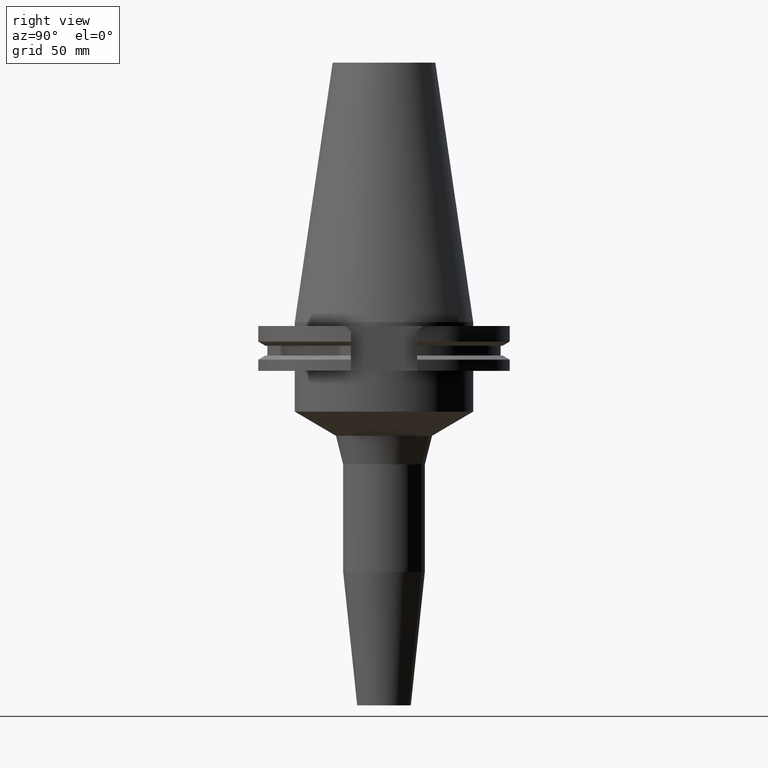
[diagram: clean part render]
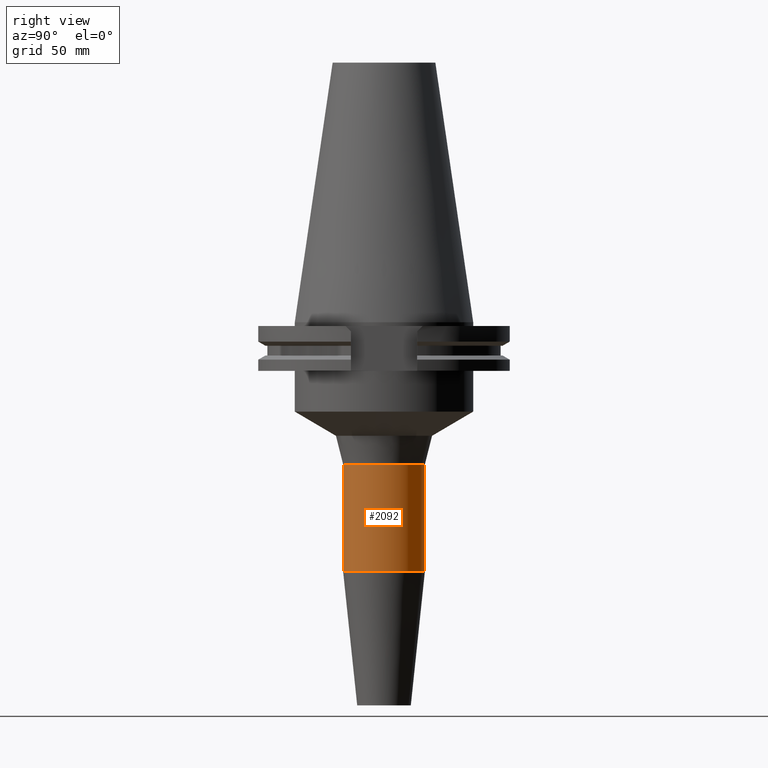
[diagram: same view with one face highlighted and labeled with its STEP entity id]
A machine part, right view. The second image highlights one B-rep face of the part: STEP entity #2092.
In plain terms, the highlighted cylindrical surface (partial cylindrical patch) has radius 16 mm, axis along (0, 0, -1).
Its self-contained STEP definition (entity closure, byte-faithful):
#922=CARTESIAN_POINT('',(0.E0,0.E0,-5.5658E1));
#923=DIRECTION('',(0.E0,0.E0,-1.E0));
#924=DIRECTION('',(0.E0,1.E0,0.E0));
#925=AXIS2_PLACEMENT_3D('',#922,#923,#924);
#938=DIRECTION('',(0.E0,6.071569977129E-14,-1.E0));
#939=VECTOR('',#938,4.201299550178E1);
#940=CARTESIAN_POINT('',(0.E0,1.6E1,-5.5658E1));
#941=LINE('',#940,#939);
#945=DIRECTION('',(0.E0,-6.105394879509E-14,-1.E0));
#946=VECTOR('',#945,4.201299550178E1);
#947=CARTESIAN_POINT('',(0.E0,-1.6E1,-5.5658E1));
#948=LINE('',#947,#946);
#974=CARTESIAN_POINT('',(0.E0,-1.516547459414E-14,-9.767099550178E1));
#975=DIRECTION('',(0.E0,0.E0,1.E0));
#976=DIRECTION('',(0.E0,-1.E0,0.E0));
#977=AXIS2_PLACEMENT_3D('',#974,#975,#976);
#1240=CARTESIAN_POINT('',(0.E0,1.6E1,-9.767099550178E1));
#1241=VERTEX_POINT('',#1240);
#1242=CARTESIAN_POINT('',(0.E0,-1.6E1,-9.767099550178E1));
#1243=VERTEX_POINT('',#1242);
#1244=CARTESIAN_POINT('',(0.E0,1.6E1,-5.5658E1));
#1245=VERTEX_POINT('',#1244);
#1246=CARTESIAN_POINT('',(0.E0,-1.6E1,-5.5658E1));
#1247=VERTEX_POINT('',#1246);
#2078=CARTESIAN_POINT('',(0.E0,1.398301715266E-14,1.1418E2));
#2079=DIRECTION('',(0.E0,0.E0,-1.E0));
#2080=DIRECTION('',(0.E0,-1.E0,0.E0));
#2081=AXIS2_PLACEMENT_3D('',#2078,#2079,#2080);
#2082=CYLINDRICAL_SURFACE('',#2081,1.6E1);
#2084=ORIENTED_EDGE('',*,*,#2083,.T.);
#2086=ORIENTED_EDGE('',*,*,#2085,.F.);
#2088=ORIENTED_EDGE('',*,*,#2087,.F.);
#2089=ORIENTED_EDGE('',*,*,#2071,.F.);
#2090=EDGE_LOOP('',(#2084,#2086,#2088,#2089));
#2091=FACE_OUTER_BOUND('',#2090,.F.);
#926=CIRCLE('',#925,1.6E1);
#978=CIRCLE('',#977,1.6E1);
#2071=EDGE_CURVE('',#1245,#1247,#926,.T.);
#2083=EDGE_CURVE('',#1245,#1241,#941,.T.);
#2085=EDGE_CURVE('',#1243,#1241,#978,.T.);
#2087=EDGE_CURVE('',#1247,#1243,#948,.T.);
#2092=ADVANCED_FACE('',(#2091),#2082,.T.);